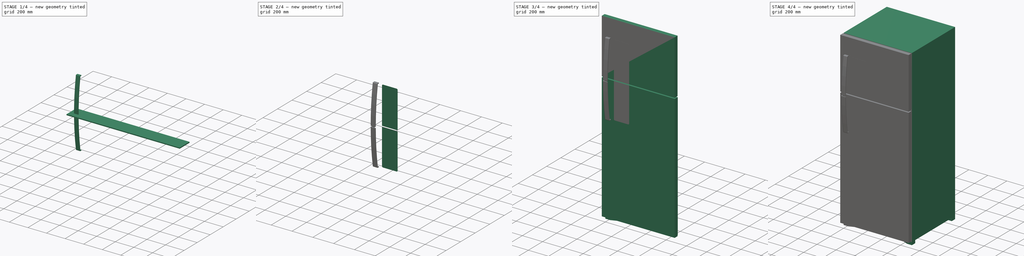
[diagram: build sequence overview — one tinted view per stage of 4, left to right]
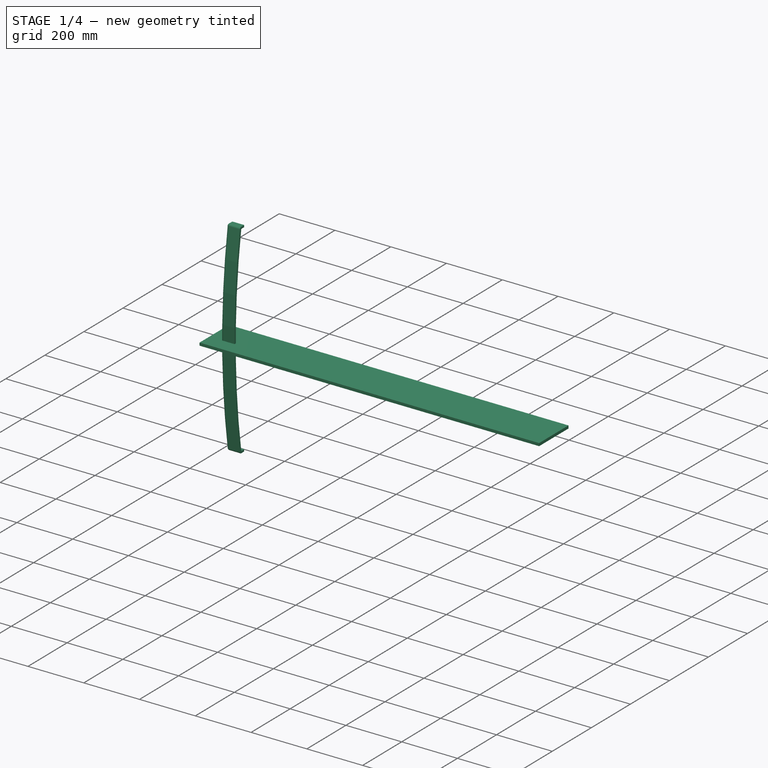
[diagram: stage 1 of 4 — iso view after this stage's code; geometry added in this stage tinted green]
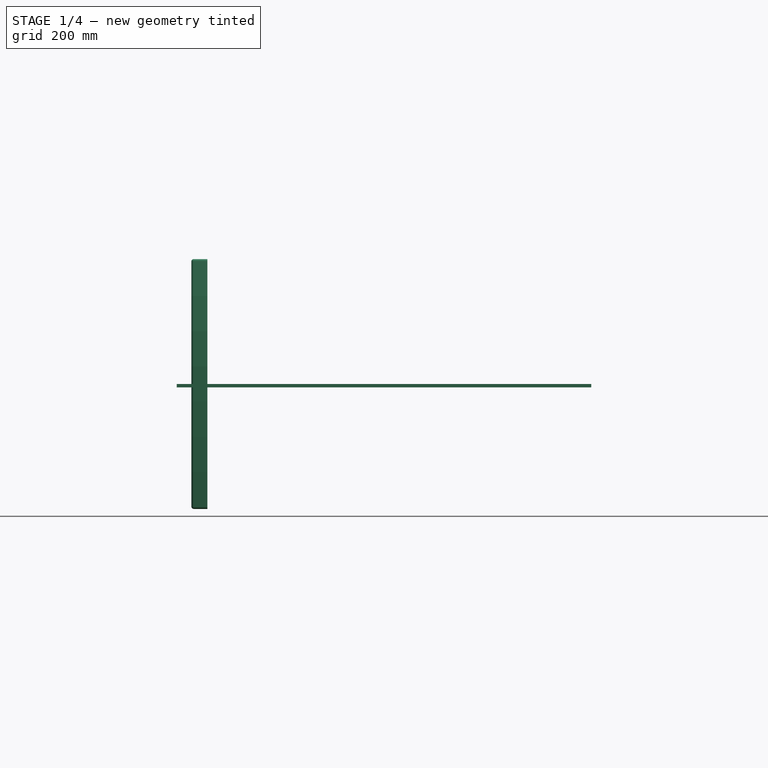
[diagram: stage 1 of 4 — front view after this stage's code; geometry added in this stage tinted green]
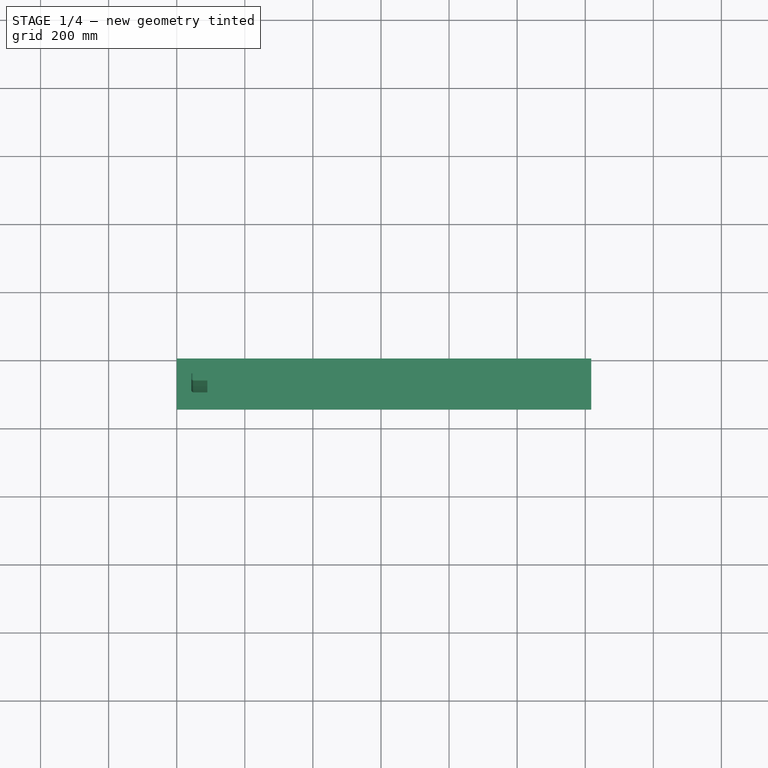
[diagram: stage 1 of 4 — top view after this stage's code; geometry added in this stage tinted green]
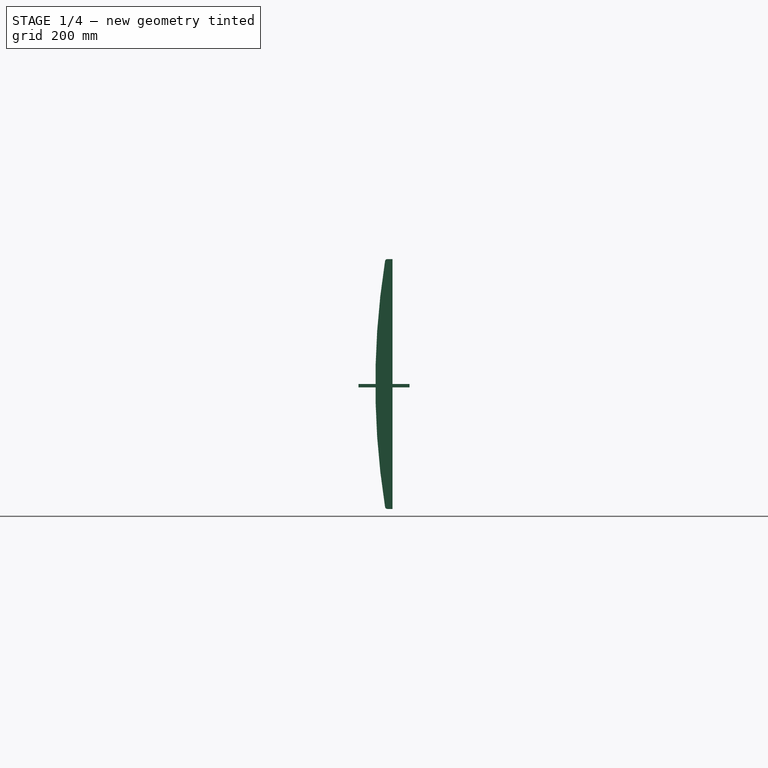
[diagram: stage 1 of 4 — right view after this stage's code; geometry added in this stage tinted green]
FCSTD DOCUMENT  (FreeCAD 0.21R33668 +26 (Git))
Label: Geladeira
License: All rights reserved
objects: Part::Extrusion×9, Sketcher::SketchObject×8, Part::Feature×3, Part::Cut×2, Part::FeaturePython×1, Part::Thickness×1, Part::Part2DObjectPython×1, Part::Compound×1
note: 26 computed .brp shape members not serialized (recipe doc carries the construction recipe); baked Part::Feature solids carry a one-line shape summary decoded from their .brp

FEATURE [Part::Feature] Mirror001  label="Pé (espelhado)001"
  Placement = pos=(720,0,0) rot=(0,0,1;0rad)
  shape: bbox 100 x 50 x 30 mm, 7 faces (baked)
  expr: .Placement.Base.x = <<Propriedades geladeira>>.Largura
FEATURE [Part::Feature] Mirror003  label="Pé (espelhado)002"
  Placement = pos=(0,650,0) rot=(0,0,1;0rad)
  shape: bbox 100 x 50 x 30 mm, 7 faces (baked)
  expr: .Placement.Base.y = <<Propriedades geladeira>>.Profundidade - 5 cm
FEATURE [Part::Feature] Mirror004  label="Pé (espelhado)001 (espelhado)001"
  Placement = pos=(0,650,0) rot=(0,0,1;0rad)
  shape: bbox 100 x 50 x 30 mm, 7 faces (baked)
  expr: .Placement.Base.y = <<Propriedades geladeira>>.Profundidade - 5 cm
FEATURE [Sketcher::SketchObject] Sketch006
  FullyConstrained = true
  Placement = pos=(0,0,0) rot=(0.57735,0.57735,0.57735;2.0944rad)
  expr: Constraints[2] = <<Propriedades geladeira>>.Altura * 0.4
  sketch-geometry (4):
    g0: LineSegment StartX=0 StartY=0 StartZ=0 EndX=0 EndY=720 EndZ=0
    g1: LineSegment StartX=0 StartY=720 StartZ=0 EndX=15 EndY=720 EndZ=0
    g2: LineSegment StartX=0 StartY=0 StartZ=0 EndX=15 EndY=0 EndZ=0
    g3: ArcOfCircle CenterX=-2256.65 CenterY=360 CenterZ=0 NormalX=0 NormalY=0 NormalZ=1 AngleXU=0 Radius=2300 StartAngle=6.12602 EndAngle=6.44035
  constraints (12):
    c: Coincident(g0,g-1)
    c: Vertical(g0)
    c: DistanceY(g0,g0) = 720
    c: Coincident(g1,g0)
    c: Horizontal(g1)
    c: Coincident(g2,g0)
    c: PointOnObject(g2,g-1)
    c: Equal(g2,g1)
    c: DistanceX(g1,g1) = 15
    c: Coincident(g3,g1)
    c: Coincident(g3,g2)
    c: Radius(g3) = 2300
FEATURE [Part::Extrusion] Extrude006
  Base = -> Sketch006
  Dir = (1,0,0)
  DirMode = 2
  FaceMakerClass = Part::FaceMakerBullseye
  LengthFwd = 0
  LengthRev = 40
  Solid = true
  Symmetric = false
FEATURE [Part::Thickness] Thickness
  Faces = -> Extrude006 [Face1,Face5]
  Intersection = false
  Join = 0
  Mode = 0
  Placement = pos=(50,-50,900) rot=(0,0,-1;3.14159rad)
  SelfIntersection = false
  Value = 7
  expr: .Placement.Base.z = <<Propriedades geladeira>>.Altura * 0.5
FEATURE [Part::Part2DObjectPython] Rectangle  # Draft 2D object (typed FeaturePython)
  Area = 12177.9
  ChamferSize = 0
  Columns = 1
  FilletRadius = 0
  Height = 10
  Length = 1217.79
  MakeFace = true
  Placement = pos=(0,0,0) rot=(1,0,0;1.5708rad)
  Rows = 1
FEATURE [Part::Extrusion] Extrude008
  Base = -> Rectangle
  Dir = (0,-1,2e-16)
  DirMode = 2
  FaceMakerClass = Part::FaceMakerBullseye
  LengthFwd = 150
  LengthRev = 0
  Placement = pos=(0,0,1250) rot=(0,0,1;0rad)
  Solid = false
  Symmetric = false
  expr: .Placement.Base.z = <<Propriedades geladeira>>.Altura - <<Propriedades geladeira>>.Altura * 0.3 - 1 cm
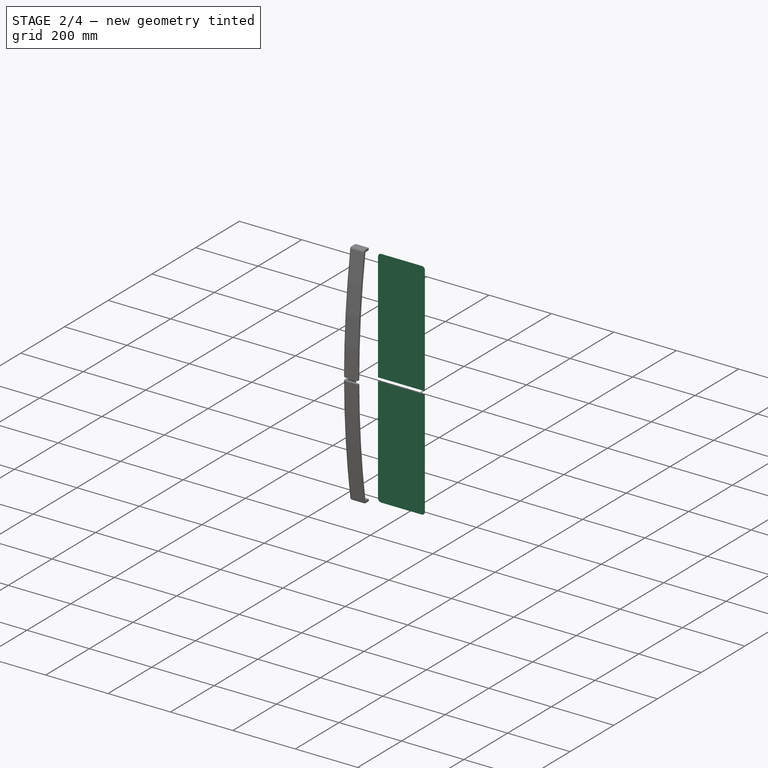
[diagram: stage 2 of 4 — iso view after this stage's code; geometry added in this stage tinted green]
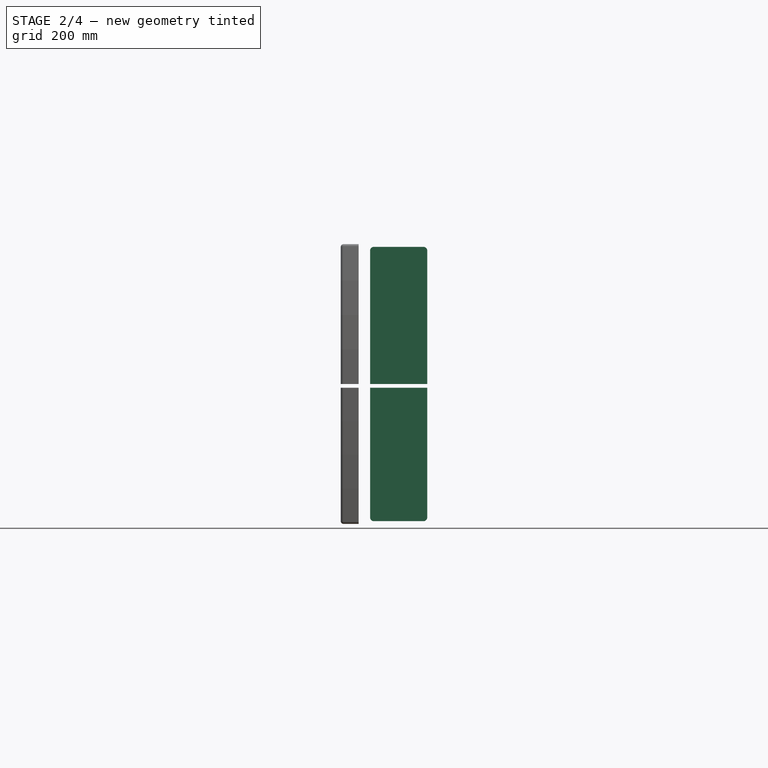
[diagram: stage 2 of 4 — front view after this stage's code; geometry added in this stage tinted green]
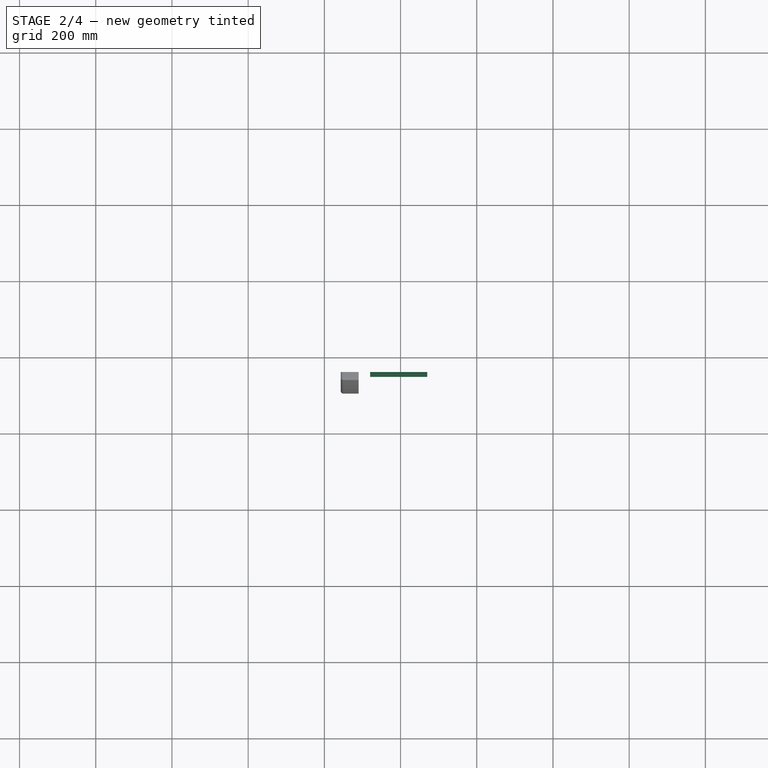
[diagram: stage 2 of 4 — top view after this stage's code; geometry added in this stage tinted green]
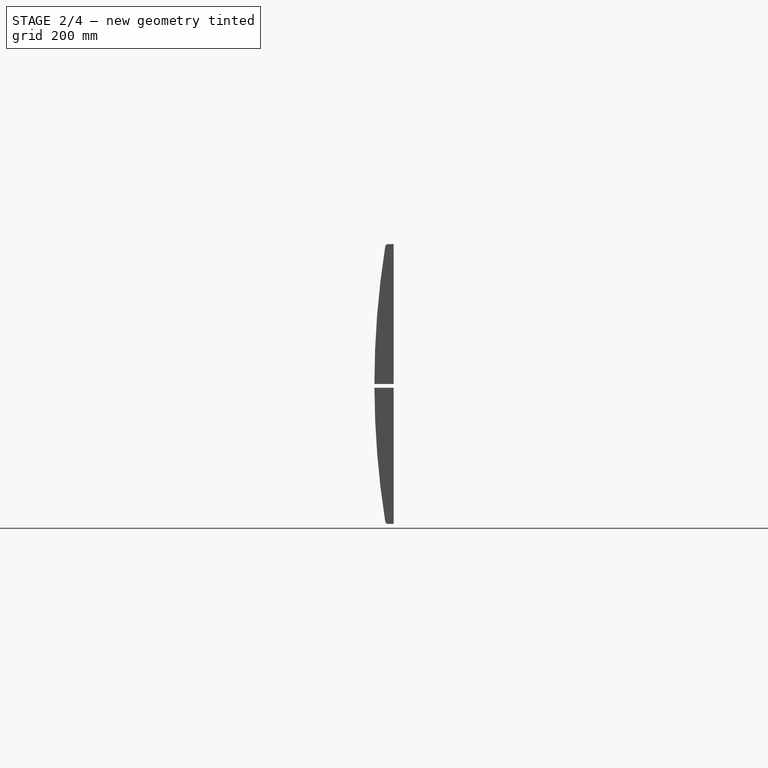
[diagram: stage 2 of 4 — right view after this stage's code; geometry added in this stage tinted green]
FEATURE [Sketcher::SketchObject] Sketch007
  FullyConstrained = true
  Placement = pos=(0,0,0) rot=(1,0,0;1.5708rad)
  expr: Constraints[19] = <<Propriedades geladeira>>.Altura * 0.4
  sketch-geometry (10):
    g0: ArcOfCircle CenterX=10 CenterY=710 CenterZ=0 NormalX=0 NormalY=0 NormalZ=1 AngleXU=0 Radius=10 StartAngle=1.5708 EndAngle=3.14159
    g1: LineSegment StartX=10 StartY=720 StartZ=0 EndX=140 EndY=720 EndZ=0
    g2: ArcOfCircle CenterX=140 CenterY=710 CenterZ=0 NormalX=0 NormalY=0 NormalZ=1 AngleXU=0 Radius=10 StartAngle=-2.7e-15 EndAngle=1.5708
    g3: LineSegment StartX=150 StartY=710 StartZ=0 EndX=150 EndY=10 EndZ=0
    g4: ArcOfCircle CenterX=140 CenterY=10 CenterZ=0 NormalX=0 NormalY=0 NormalZ=1 AngleXU=0 Radius=10 StartAngle=4.71239 EndAngle=6.28319
    g5: LineSegment StartX=140 StartY=0 StartZ=0 EndX=10 EndY=0 EndZ=0
    g6: ArcOfCircle CenterX=10 CenterY=10 CenterZ=0 NormalX=0 NormalY=0 NormalZ=1 AngleXU=0 Radius=10 StartAngle=3.14159 EndAngle=4.71239
    g7: LineSegment StartX=0 StartY=10 StartZ=0 EndX=0 EndY=710 EndZ=0
    g8: GeomPoint X=0 Y=720 Z=0
    g9: GeomPoint X=150 Y=0 Z=0
  constraints (24):
    c: Tangent(g0,g1) = 1.5708
    c: Tangent(g1,g2) = 1.5708
    c: Tangent(g2,g3) = 1.5708
    c: Tangent(g3,g4) = 1.5708
    c: Tangent(g4,g5) = 1.5708
    c: Tangent(g5,g6) = 1.5708
    c: Tangent(g6,g7) = 1.5708
    c: Tangent(g7,g0) = 1.5708
    c: Horizontal(g1)
    c: Horizontal(g5)
    c: Vertical(g3)
    c: Vertical(g7)
    c: Equal(g0,g2)
    c: Equal(g2,g4)
    c: Equal(g4,g6)
    c: PointOnObject(g8,g1)
    c: PointOnObject(g8,g7)
    c: PointOnObject(g9,g3)
    c: PointOnObject(g9,g5)
    c: DistanceY(g9,g8) = 720
    c: DistanceX(g8,g9) = 150
    c: Radius(g0) = 10
    c: PointOnObject(g8,g-2)
    c: PointOnObject(g9,g-1)
FEATURE [Part::Extrusion] Extrude007
  Base = -> Sketch007
  Dir = (0,-1,2e-16)
  DirMode = 2
  FaceMakerClass = Part::FaceMakerBullseye
  LengthFwd = 0.3
  LengthRev = 0
  Placement = pos=(120,-50,900) rot=(0,0,1;0rad)
  Solid = true
  Symmetric = false
  expr: .Placement.Base.z = <<Propriedades geladeira>>.Altura * 0.5
FEATURE [Part::Cut] Cut
  Base = -> Extrude007
  Tool = -> Extrude008
FEATURE [Part::Cut] Cut001
  Base = -> Thickness
  Tool = -> Extrude008
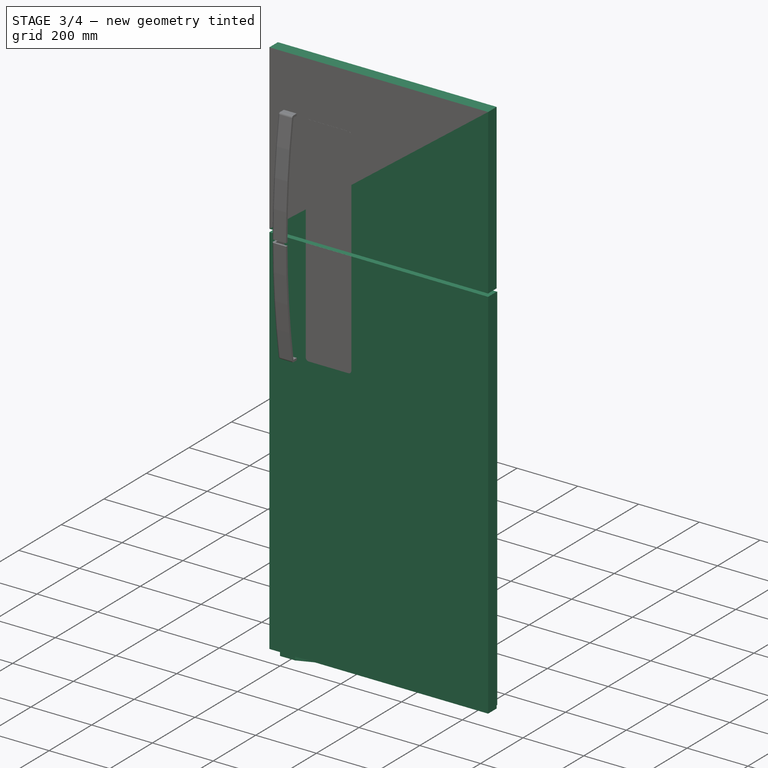
[diagram: stage 3 of 4 — iso view after this stage's code; geometry added in this stage tinted green]
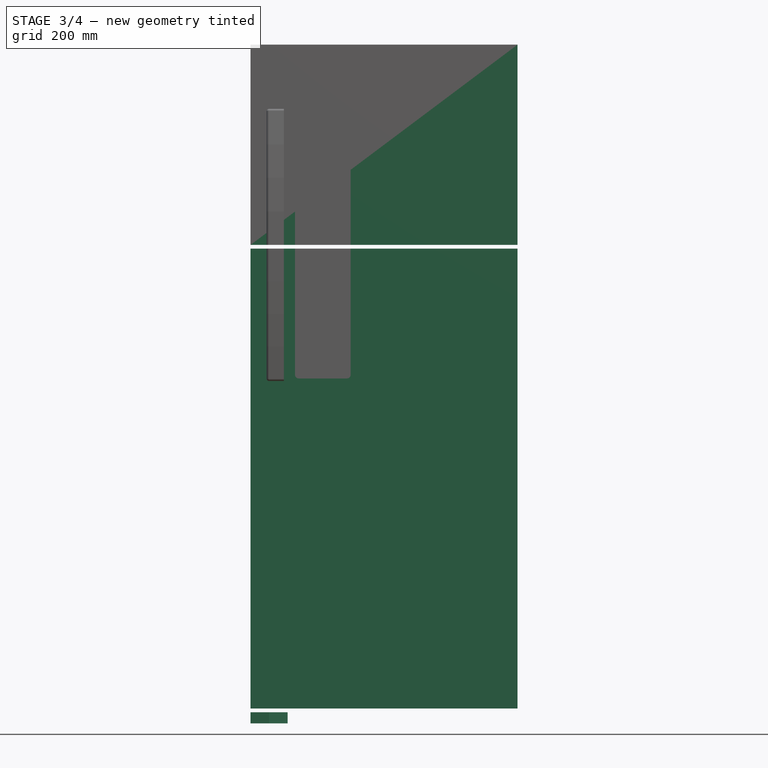
[diagram: stage 3 of 4 — front view after this stage's code; geometry added in this stage tinted green]
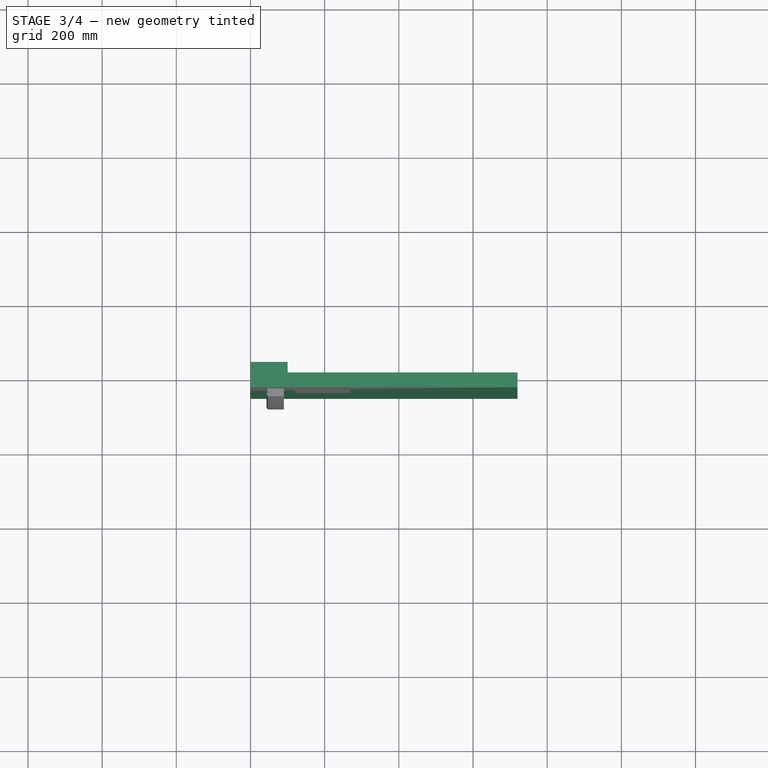
[diagram: stage 3 of 4 — top view after this stage's code; geometry added in this stage tinted green]
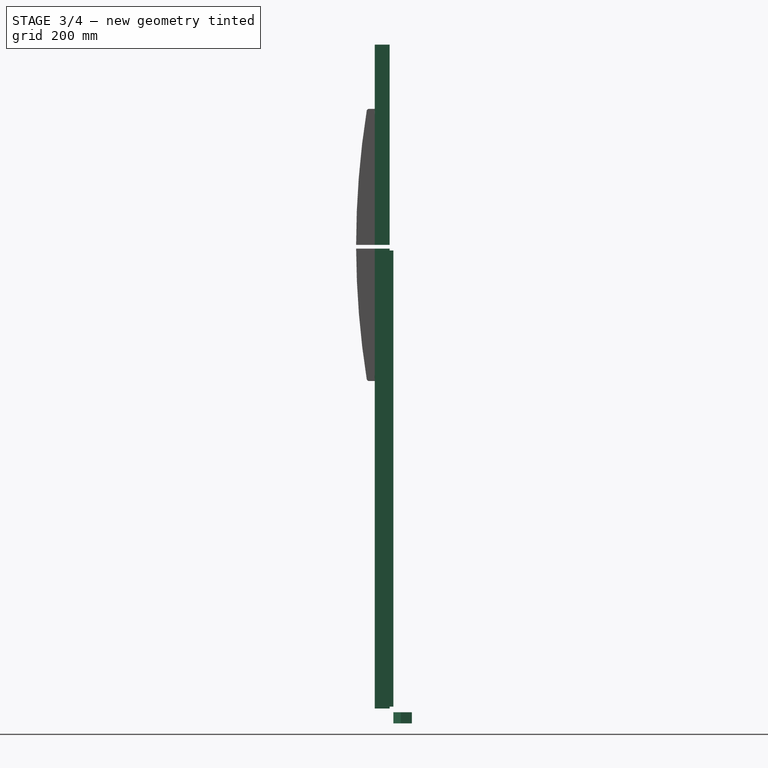
[diagram: stage 3 of 4 — right view after this stage's code; geometry added in this stage tinted green]
FEATURE [Part::Extrusion] Extrude002  label="Porta 001"
  Base = -> Sketch002
  Dir = (0,-1,2e-16)
  DirMode = 2
  FaceMakerClass = Part::FaceMakerBullseye
  LengthFwd = 40
  LengthRev = 0
  Placement = pos=(0,-10,1260) rot=(0,0,1;0rad)
  Solid = true
  Symmetric = false
  expr: .Placement.Base.z = <<Propriedades geladeira>>.Altura - <<Propriedades geladeira>>.Altura * 0.3
FEATURE [Sketcher::SketchObject] Sketch003
  FullyConstrained = true
  Placement = pos=(0,0,10) rot=(1,0,0;1.5708rad)
  expr: Constraints[10] = <<Propriedades geladeira>>.Altura * 0.7 - 2 cm
  expr: Constraints[9] = <<Propriedades geladeira>>.Largura
  sketch-geometry (4):
    g0: LineSegment StartX=0 StartY=0 StartZ=0 EndX=720 EndY=0 EndZ=0
    g1: LineSegment StartX=720 StartY=0 StartZ=0 EndX=720 EndY=1240 EndZ=0
    g2: LineSegment StartX=720 StartY=1240 StartZ=0 EndX=0 EndY=1240 EndZ=0
    g3: LineSegment StartX=0 StartY=1240 StartZ=0 EndX=0 EndY=0 EndZ=0
  constraints (11):
    c: Coincident(g0,g1)
    c: Coincident(g1,g2)
    c: Coincident(g2,g3)
    c: Coincident(g3,g0)
    c: Horizontal(g0)
    c: Horizontal(g2)
    c: Vertical(g1)
    c: Vertical(g3)
    c: Coincident(g0,g-1)
    c: DistanceX(g2,g2) = 720
    c: DistanceY(g1,g1) = 1240
FEATURE [Sketcher::SketchObject] Sketch004
  FullyConstrained = true
  Placement = pos=(5,0,15) rot=(1,0,0;1.5708rad)
  expr: Constraints[10] = <<Propriedades geladeira>>.Altura * 0.7 - 2 cm - 1 cm
  expr: Constraints[9] = <<Propriedades geladeira>>.Largura - 1 cm
  sketch-geometry (4):
    g0: LineSegment StartX=0 StartY=0 StartZ=0 EndX=710 EndY=0 EndZ=0
    g1: LineSegment StartX=710 StartY=0 StartZ=0 EndX=710 EndY=1230 EndZ=0
    g2: LineSegment StartX=710 StartY=1230 StartZ=0 EndX=0 EndY=1230 EndZ=0
    g3: LineSegment StartX=0 StartY=1230 StartZ=0 EndX=0 EndY=0 EndZ=0
  constraints (11):
    c: Coincident(g0,g1)
    c: Coincident(g1,g2)
    c: Coincident(g2,g3)
    c: Coincident(g3,g0)
    c: Horizontal(g0)
    c: Horizontal(g2)
    c: Vertical(g1)
    c: Vertical(g3)
    c: Coincident(g0,g-1)
    c: DistanceX(g2,g2) = 710
    c: DistanceY(g1,g1) = 1230
FEATURE [Part::Extrusion] Extrude003  label="Borracha"
  Base = -> Sketch004
  Dir = (0,-1,-3e-16)
  DirMode = 2
  FaceMakerClass = Part::FaceMakerBullseye
  LengthFwd = 10
  LengthRev = 0
  Solid = true
  Symmetric = false
FEATURE [Part::Extrusion] Extrude004  label="Porta "
  Base = -> Sketch003
  Dir = (0,-1,-3e-16)
  DirMode = 2
  FaceMakerClass = Part::FaceMakerBullseye
  LengthFwd = 40
  LengthRev = 0
  Placement = pos=(0,-10,0) rot=(0,0,1;0rad)
  Solid = true
  Symmetric = false
FEATURE [Sketcher::SketchObject] Sketch005
  FullyConstrained = true
  sketch-geometry (5):
    g0: LineSegment StartX=0 StartY=0 StartZ=0 EndX=50 EndY=0 EndZ=0
    g1: LineSegment StartX=50 StartY=0 StartZ=0 EndX=100 EndY=20 EndZ=0
    g2: LineSegment StartX=100 StartY=20 StartZ=0 EndX=100 EndY=50 EndZ=0
    g3: LineSegment StartX=100 StartY=50 StartZ=0 EndX=0 EndY=50 EndZ=0
    g4: LineSegment StartX=0 StartY=50 StartZ=0 EndX=0 EndY=0 EndZ=0
  constraints (14):
    c: Coincident(g0,g-1)
    c: PointOnObject(g0,g-1)
    c: Coincident(g1,g0)
    c: Coincident(g2,g1)
    c: Vertical(g2)
    c: Coincident(g3,g2)
    c: PointOnObject(g3,g-2)
    c: Horizontal(g3)
    c: Coincident(g4,g3)
    c: Coincident(g4,g0)
    c: DistanceX(g3,g3) = 100
    c: DistanceY(g4,g4) = 50
    c: DistanceX(g0,g0) = 50
    c: DistanceY(g2,g2) = 30
FEATURE [Part::Extrusion] Extrude005  label="Pé"
  Base = -> Sketch005
  Dir = (0,0,1)
  DirMode = 2
  FaceMakerClass = Part::FaceMakerBullseye
  LengthFwd = 30
  LengthRev = 0
  Placement = pos=(0,0,-30) rot=(0,0,1;0rad)
  Solid = true
  Symmetric = false
  expr: .Placement.Base.z = -3 cm
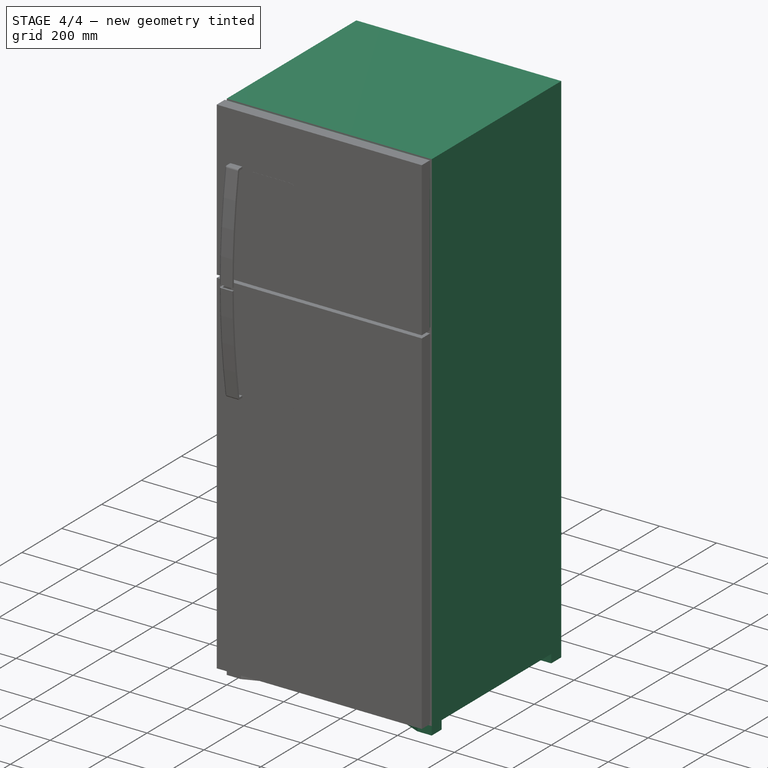
[diagram: stage 4 of 4 — iso view after this stage's code; geometry added in this stage tinted green]
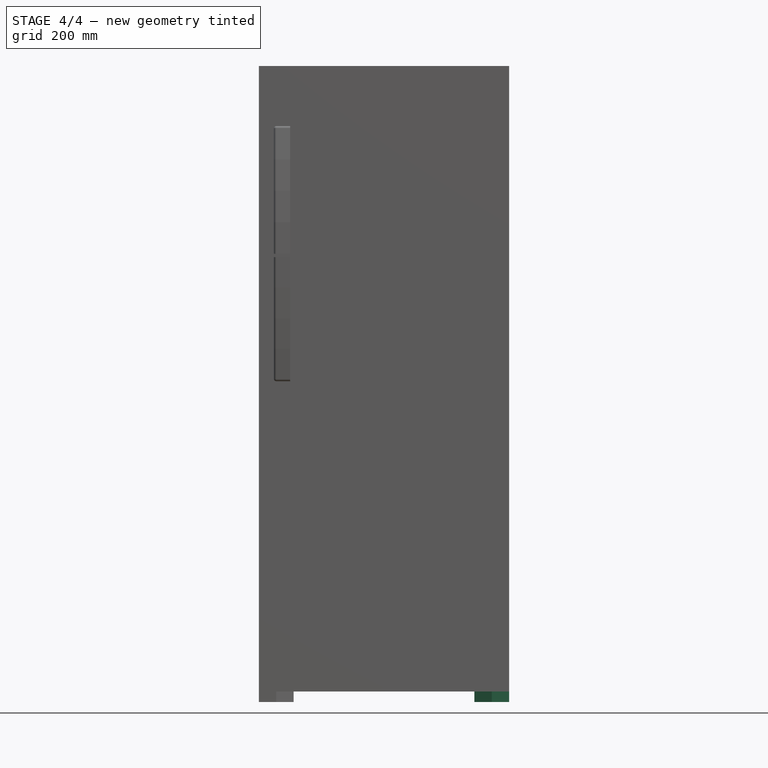
[diagram: stage 4 of 4 — front view after this stage's code; geometry added in this stage tinted green]
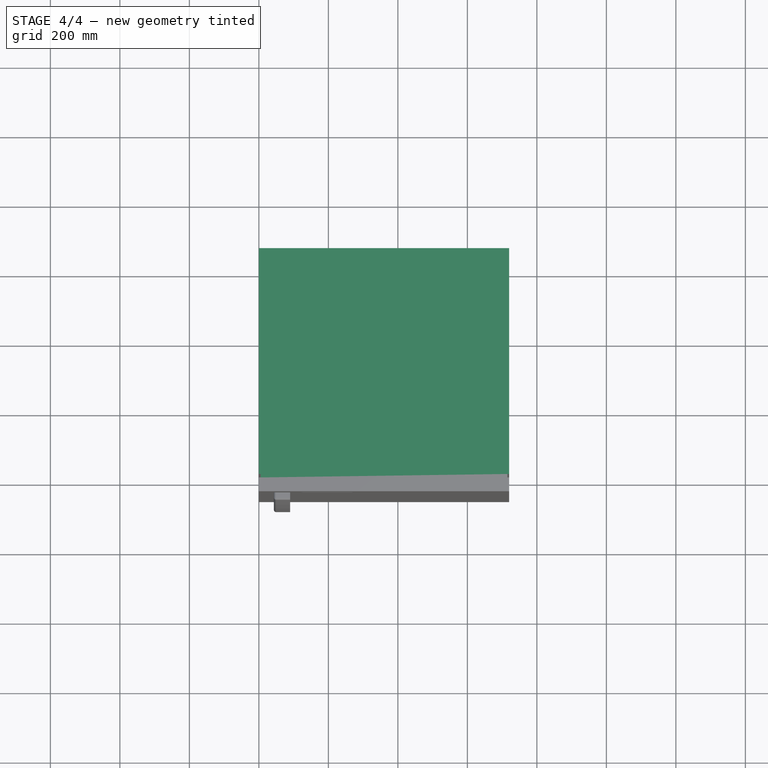
[diagram: stage 4 of 4 — top view after this stage's code; geometry added in this stage tinted green]
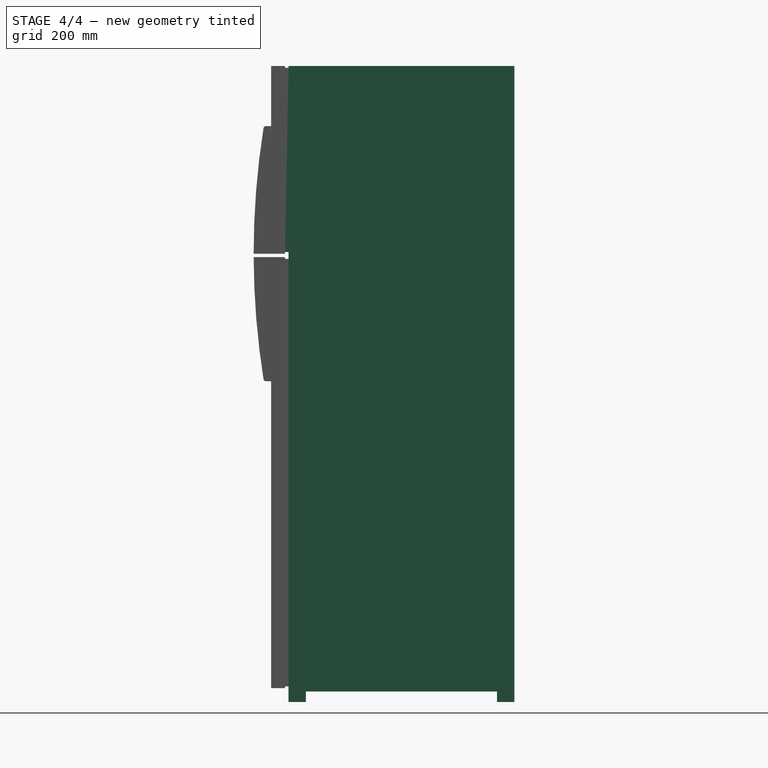
[diagram: stage 4 of 4 — right view after this stage's code; geometry added in this stage tinted green]
FEATURE [Part::FeaturePython] Point  label="Propriedades geladeira"  # WARN: FeaturePython — macro-defined, semantics opaque (R4)
  Altura = 1800
  Largura = 720
  Profundidade = 700
  X = 0
  Y = 0
  Z = 0
FEATURE [Sketcher::SketchObject] Sketch
  FullyConstrained = true
  Placement = pos=(0,0,0) rot=(1,0,0;1.5708rad)
  expr: Constraints[10] = <<Propriedades geladeira>>.Altura
  expr: Constraints[9] = <<Propriedades geladeira>>.Largura
  sketch-geometry (4):
    g0: LineSegment StartX=0 StartY=0 StartZ=0 EndX=720 EndY=0 EndZ=0
    g1: LineSegment StartX=720 StartY=0 StartZ=0 EndX=720 EndY=1800 EndZ=0
    g2: LineSegment StartX=720 StartY=1800 StartZ=0 EndX=0 EndY=1800 EndZ=0
    g3: LineSegment StartX=0 StartY=1800 StartZ=0 EndX=0 EndY=0 EndZ=0
  constraints (11):
    c: Coincident(g0,g1)
    c: Coincident(g1,g2)
    c: Coincident(g2,g3)
    c: Coincident(g3,g0)
    c: Horizontal(g0)
    c: Horizontal(g2)
    c: Vertical(g1)
    c: Vertical(g3)
    c: Coincident(g0,g-1)
    c: DistanceX(g2,g2) = 720
    c: DistanceY(g1,g1) = 1800
FEATURE [Part::Extrusion] Extrude  label="Corpo"
  Base = -> Sketch
  Dir = (0,-1,2e-16)
  DirMode = 2
  FaceMakerClass = Part::FaceMakerBullseye
  LengthFwd = 0
  LengthRev = 650
  Solid = true
  Symmetric = false
  expr: LengthRev = <<Propriedades geladeira>>.Profundidade - 5 cm
FEATURE [Sketcher::SketchObject] Sketch001
  FullyConstrained = true
  Placement = pos=(0,0,0) rot=(1,0,0;1.5708rad)
  expr: Constraints[10] = <<Propriedades geladeira>>.Altura * 0.3 - 1 cm
  expr: Constraints[9] = <<Propriedades geladeira>>.Largura - 1 cm
  sketch-geometry (4):
    g0: LineSegment StartX=0 StartY=0 StartZ=0 EndX=710 EndY=0 EndZ=0
    g1: LineSegment StartX=710 StartY=0 StartZ=0 EndX=710 EndY=530 EndZ=0
    g2: LineSegment StartX=710 StartY=530 StartZ=0 EndX=0 EndY=530 EndZ=0
    g3: LineSegment StartX=0 StartY=530 StartZ=0 EndX=0 EndY=0 EndZ=0
  constraints (11):
    c: Coincident(g0,g1)
    c: Coincident(g1,g2)
    c: Coincident(g2,g3)
    c: Coincident(g3,g0)
    c: Horizontal(g0)
    c: Horizontal(g2)
    c: Vertical(g1)
    c: Vertical(g3)
    c: Coincident(g0,g-1)
    c: DistanceX(g2,g2) = 710
    c: DistanceY(g1,g1) = 530
FEATURE [Sketcher::SketchObject] Sketch002
  FullyConstrained = true
  Placement = pos=(0,0,0) rot=(1,0,0;1.5708rad)
  expr: Constraints[10] = <<Propriedades geladeira>>.Altura * 0.3
  expr: Constraints[9] = <<Propriedades geladeira>>.Largura
  sketch-geometry (4):
    g0: LineSegment StartX=0 StartY=0 StartZ=0 EndX=720 EndY=0 EndZ=0
    g1: LineSegment StartX=720 StartY=0 StartZ=0 EndX=720 EndY=540 EndZ=0
    g2: LineSegment StartX=720 StartY=540 StartZ=0 EndX=0 EndY=540 EndZ=0
    g3: LineSegment StartX=0 StartY=540 StartZ=0 EndX=0 EndY=0 EndZ=0
  constraints (11):
    c: Coincident(g0,g1)
    c: Coincident(g1,g2)
    c: Coincident(g2,g3)
    c: Coincident(g3,g0)
    c: Horizontal(g0)
    c: Horizontal(g2)
    c: Vertical(g1)
    c: Vertical(g3)
    c: Coincident(g0,g-1)
    c: DistanceX(g2,g2) = 720
    c: DistanceY(g1,g1) = 540
FEATURE [Part::Extrusion] Extrude001  label="Borracha001"
  Base = -> Sketch001
  Dir = (0,-1,2e-16)
  DirMode = 2
  FaceMakerClass = Part::FaceMakerBullseye
  LengthFwd = 10
  LengthRev = 0
  Placement = pos=(5,0,1265) rot=(0,0,1;0rad)
  Solid = true
  Symmetric = false
  expr: .Placement.Base.z = <<Propriedades geladeira>>.Altura - <<Propriedades geladeira>>.Altura * 0.3 + 0.5 cm
FEATURE [Part::Compound] Compound  label="Geladeira"
  Links = -> [Extrude,Extrude001,Extrude002,Extrude003,Extrude004,Extrude005,Mirror001,Mirror003,Mirror004,Cut,Cut001]
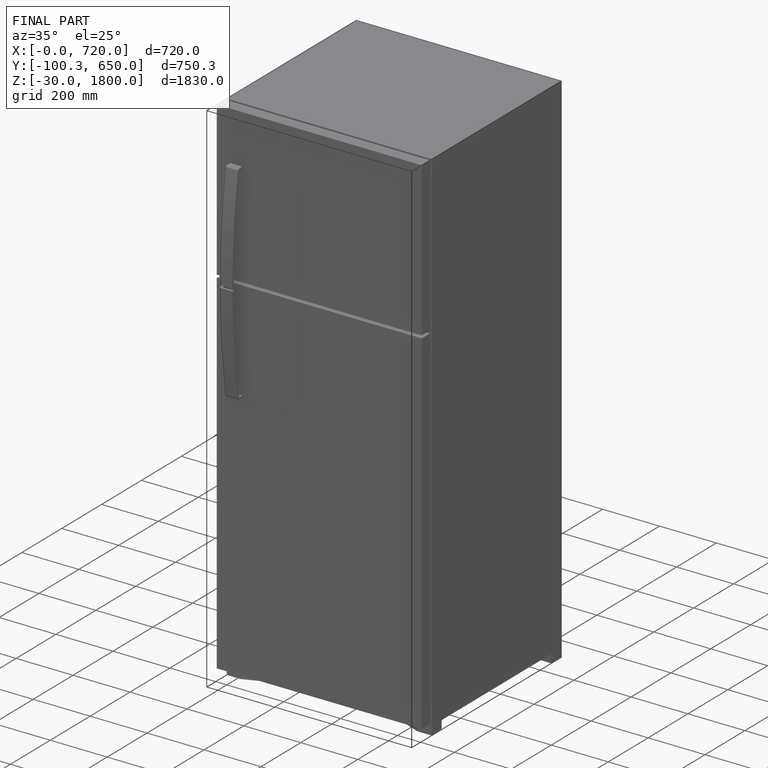
[diagram: finished part — iso view with bounding-box wireframe]
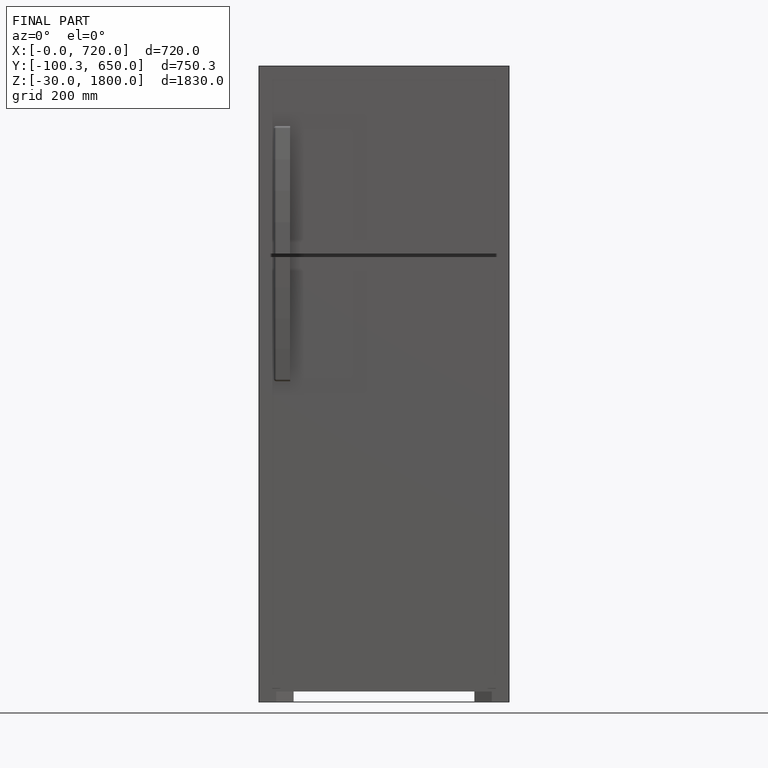
[diagram: finished part — front view with bounding-box wireframe]
